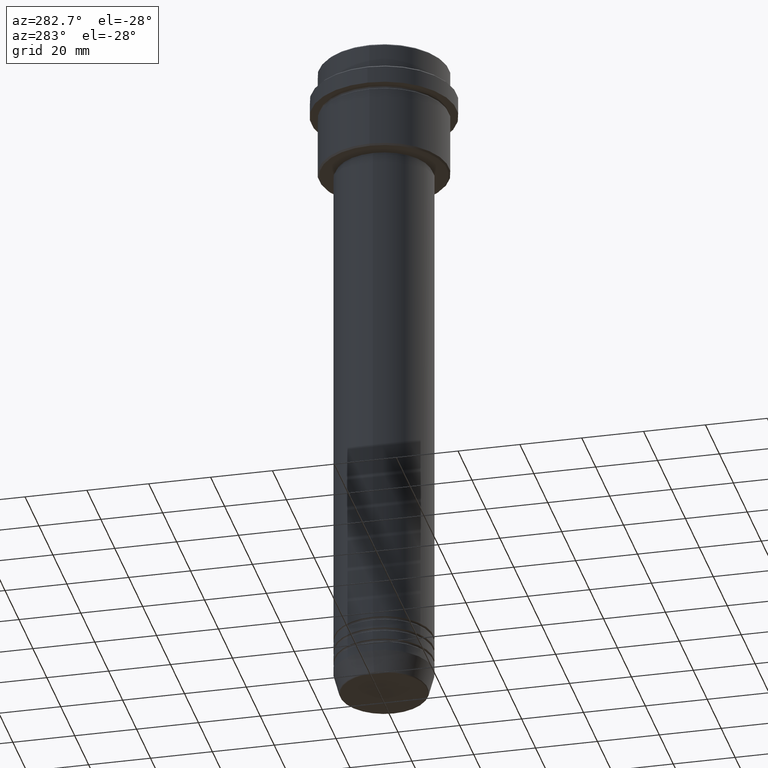
[diagram: clean part render]
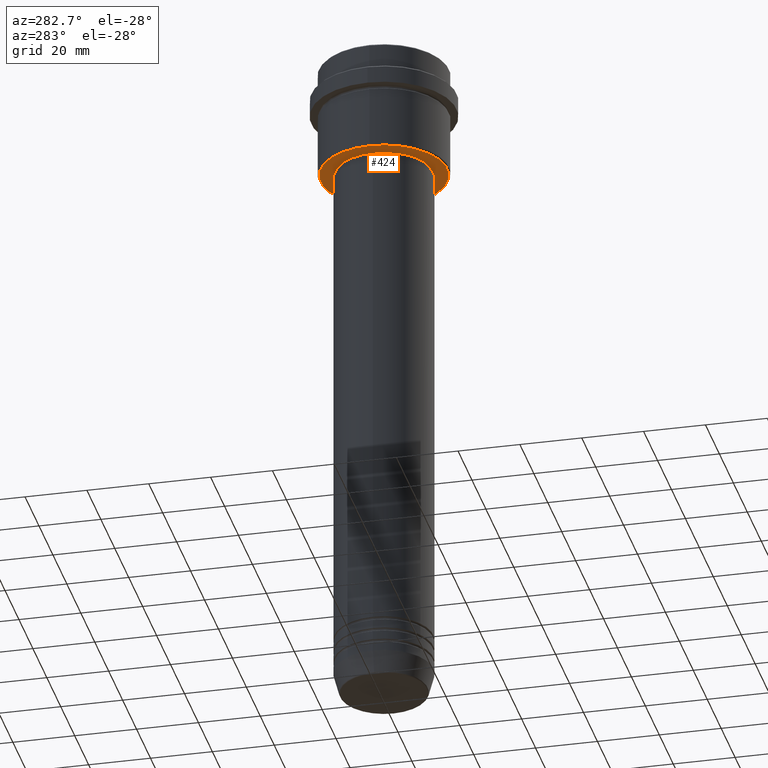
[diagram: same view with one face highlighted and labeled with its STEP entity id]
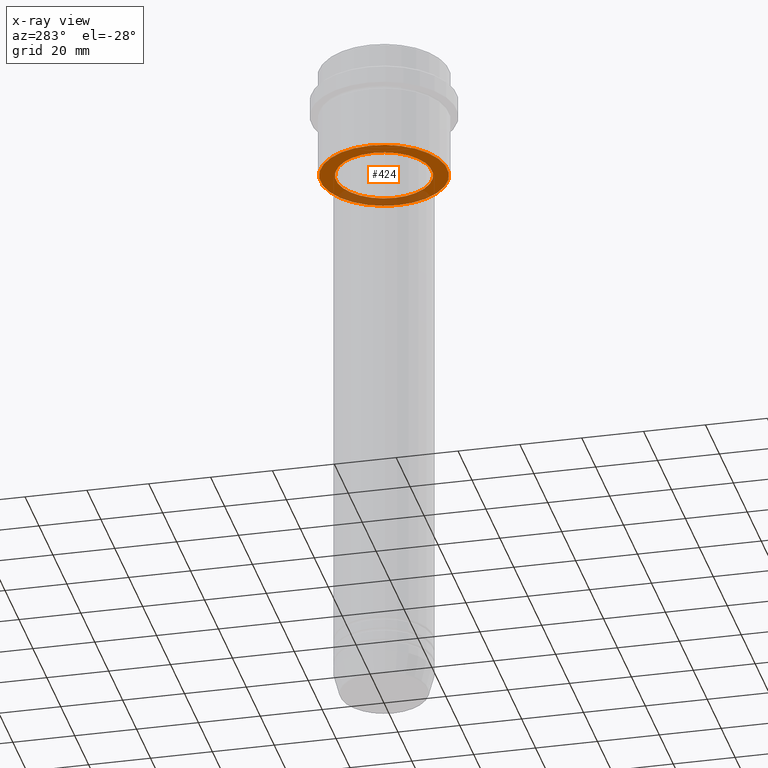
[diagram: x-ray of the same camera — body ghosted, the highlighted face saturated]
A machine part, auxiliary view. The second image highlights one B-rep face of the part: STEP entity #424.
The next image is the same camera in x-ray: the body ghosted, the highlighted face saturated — about 27% of this face is hidden behind the body in this view.
In plain terms, the highlighted planar face has unit normal (0, 0, -1).
Its self-contained STEP definition (entity closure, byte-faithful):
#94 = DIRECTION ( 'NONE',  ( -1.000000000000000000, 0.000000000000000000, 0.000000000000000000 ) ) ;
#100 = DIRECTION ( 'NONE',  ( 1.000000000000000000, 0.000000000000000000, 0.000000000000000000 ) ) ;
#120 = CARTESIAN_POINT ( 'NONE',  ( 0.000000000000000000, 0.000000000000000000, -36.00000000000000711 ) ) ;
#197 = CARTESIAN_POINT ( 'NONE',  ( 0.000000000000000000, 0.000000000000000000, -36.00000000000000711 ) ) ;
#213 = FACE_OUTER_BOUND ( 'NONE', #1039, .T. ) ;
#214 = ORIENTED_EDGE ( 'NONE', *, *, #496, .T. ) ;
#230 = CIRCLE ( 'NONE', #768, 20.49999999999998934 ) ;
#251 = CIRCLE ( 'NONE', #966, 15.49999999999999645 ) ;
#357 = VERTEX_POINT ( 'NONE', #718 ) ;
#413 = DIRECTION ( 'NONE',  ( -0.000000000000000000, -0.000000000000000000, 1.000000000000000000 ) ) ;
#424 = ADVANCED_FACE ( 'NONE', ( #213, #1190 ), #1312, .T. ) ;
#462 = DIRECTION ( 'NONE',  ( 0.000000000000000000, 0.000000000000000000, -1.000000000000000000 ) ) ;
#496 = EDGE_CURVE ( 'NONE', #1295, #704, #1079, .T. ) ;
#503 = AXIS2_PLACEMENT_3D ( 'NONE', #660, #983, #780 ) ;
#593 = CARTESIAN_POINT ( 'NONE',  ( -20.49999999999998934, 2.541142108230757480E-15, -36.00000000000000711 ) ) ;
#645 = AXIS2_PLACEMENT_3D ( 'NONE', #1098, #888, #94 ) ;
#659 = CARTESIAN_POINT ( 'NONE',  ( 0.000000000000000000, 0.000000000000000000, -36.00000000000000711 ) ) ;
#660 = CARTESIAN_POINT ( 'NONE',  ( 0.000000000000000000, 21.00000000000000000, -36.00000000000000711 ) ) ;
#673 = AXIS2_PLACEMENT_3D ( 'NONE', #197, #413, #866 ) ;
#701 = CARTESIAN_POINT ( 'NONE',  ( -15.49999999999999645, 1.898202538678397163E-15, -36.00000000000000711 ) ) ;
#704 = VERTEX_POINT ( 'NONE', #593 ) ;
#718 = CARTESIAN_POINT ( 'NONE',  ( 15.49999999999999645, 0.000000000000000000, -36.00000000000000711 ) ) ;
#719 = CIRCLE ( 'NONE', #673, 15.49999999999999645 ) ;
#768 = AXIS2_PLACEMENT_3D ( 'NONE', #120, #462, #896 ) ;
#780 = DIRECTION ( 'NONE',  ( -1.000000000000000000, 0.000000000000000000, -0.000000000000000000 ) ) ;
#794 = EDGE_CURVE ( 'NONE', #1064, #357, #719, .T. ) ;
#815 = EDGE_LOOP ( 'NONE', ( #1059, #1109 ) ) ;
#821 = EDGE_CURVE ( 'NONE', #357, #1064, #251, .T. ) ;
#866 = DIRECTION ( 'NONE',  ( 1.000000000000000000, 0.000000000000000000, 0.000000000000000000 ) ) ;
#871 = ORIENTED_EDGE ( 'NONE', *, *, #1406, .T. ) ;
#888 = DIRECTION ( 'NONE',  ( 0.000000000000000000, 0.000000000000000000, -1.000000000000000000 ) ) ;
#896 = DIRECTION ( 'NONE',  ( -1.000000000000000000, 0.000000000000000000, 0.000000000000000000 ) ) ;
#966 = AXIS2_PLACEMENT_3D ( 'NONE', #659, #1292, #100 ) ;
#967 = CARTESIAN_POINT ( 'NONE',  ( 20.49999999999998934, 0.000000000000000000, -36.00000000000000711 ) ) ;
#983 = DIRECTION ( 'NONE',  ( 0.000000000000000000, 0.000000000000000000, -1.000000000000000000 ) ) ;
#1039 = EDGE_LOOP ( 'NONE', ( #214, #871 ) ) ;
#1059 = ORIENTED_EDGE ( 'NONE', *, *, #821, .T. ) ;
#1064 = VERTEX_POINT ( 'NONE', #701 ) ;
#1079 = CIRCLE ( 'NONE', #645, 20.49999999999998934 ) ;
#1098 = CARTESIAN_POINT ( 'NONE',  ( 0.000000000000000000, 0.000000000000000000, -36.00000000000000711 ) ) ;
#1109 = ORIENTED_EDGE ( 'NONE', *, *, #794, .T. ) ;
#1190 = FACE_BOUND ( 'NONE', #815, .T. ) ;
#1292 = DIRECTION ( 'NONE',  ( -0.000000000000000000, -0.000000000000000000, 1.000000000000000000 ) ) ;
#1295 = VERTEX_POINT ( 'NONE', #967 ) ;
#1312 = PLANE ( 'NONE',  #503 ) ;
#1406 = EDGE_CURVE ( 'NONE', #704, #1295, #230, .T. ) ;